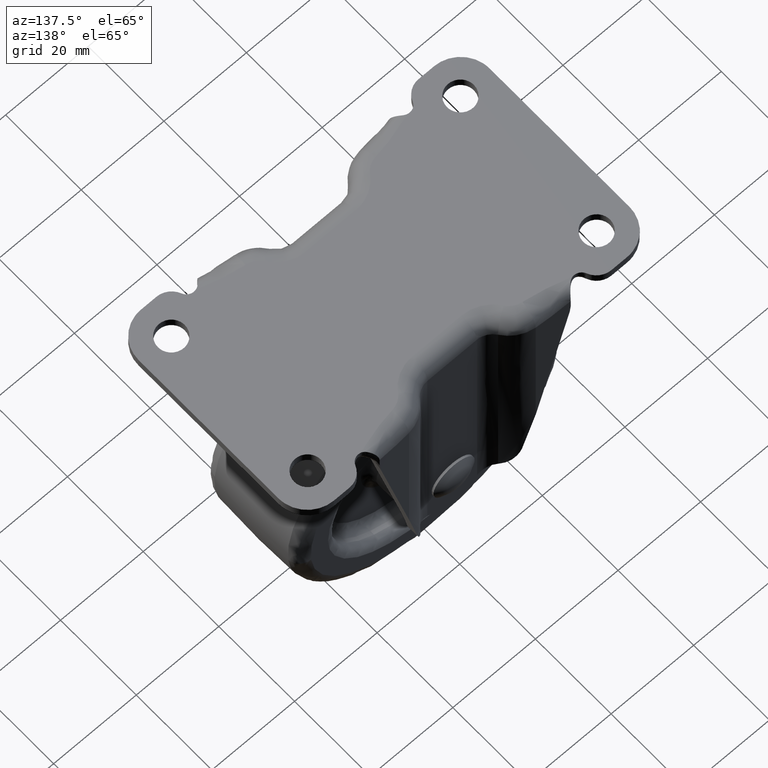
[diagram: clean part render]
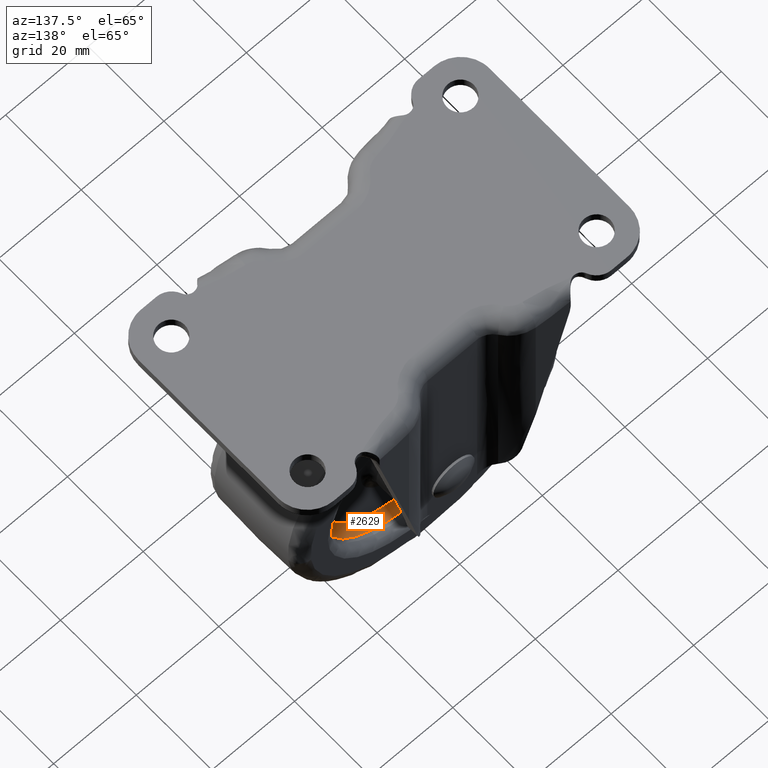
[diagram: same view with one face highlighted and labeled with its STEP entity id]
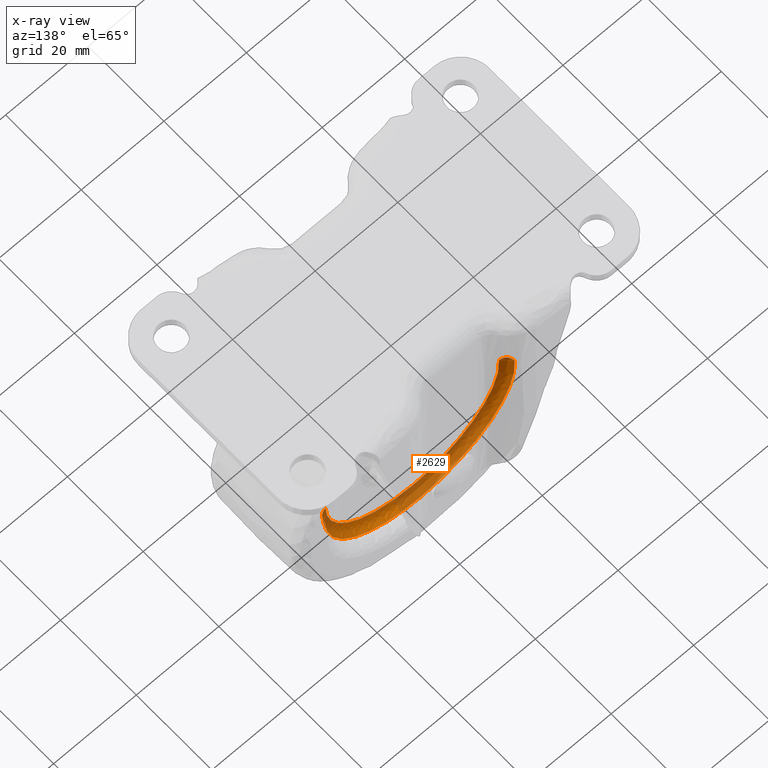
[diagram: x-ray of the same camera — body ghosted, the highlighted face saturated]
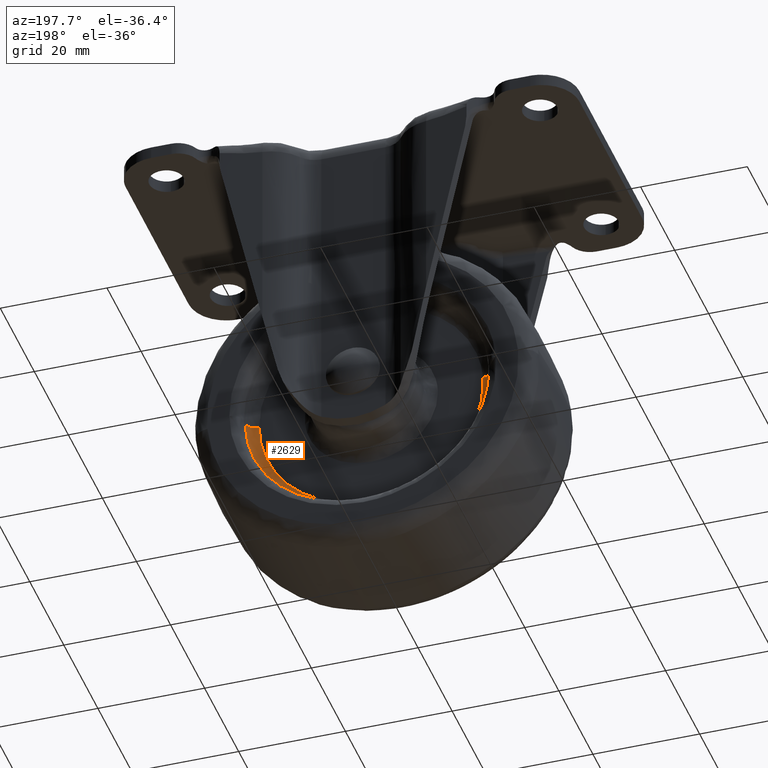
[diagram: same view with one face highlighted and labeled with its STEP entity id]
A machine part, auxiliary view. The second image highlights one B-rep face of the part: STEP entity #2629.
The next image is the same camera in x-ray: the body ghosted, the highlighted face saturated — about 72% of this face is hidden behind the body in this view.
A second angle (auxiliary view) of the same face is appended — the face is thin or edge-on in the first view.
In plain terms, the highlighted face is a freeform B-spline surface patch.
Its self-contained STEP definition (entity closure, byte-faithful):
#1368=CARTESIAN_POINT('',(11.999742555224611,9.499999999681979,-72.121574315226923));
#1369=VERTEX_POINT('',#1368);
#1370=CARTESIAN_POINT('',(22.998184016686370,9.499999997868134,-52.789018917428578));
#1371=VERTEX_POINT('',#1370);
#1372=CARTESIAN_POINT('',(11.999742555224609,9.499999999681979,-72.121574315226923));
#1373=CARTESIAN_POINT('',(22.838532437817172,9.499999999060652,-65.493019128346916));
#1374=CARTESIAN_POINT('',(22.998184016686366,9.499999997868134,-52.789018917428571));
#1382=(BOUNDED_CURVE()B_SPLINE_CURVE(2,(#1372,#1373,#1374),.UNSPECIFIED.,.F.,.U.)B_SPLINE_CURVE_WITH_KNOTS((3,3),(0.089144119900250,0.247784295920023),.UNSPECIFIED.)CURVE()GEOMETRIC_REPRESENTATION_ITEM()RATIONAL_B_SPLINE_CURVE((0.865603196985201,0.812290228465074,0.994854295640089))REPRESENTATION_ITEM(''));
#1383=EDGE_CURVE('',#1369,#1371,#1382,.T.);
#1402=CARTESIAN_POINT('',(-22.944010498322651,9.499999997871102,-50.896135213660429));
#1403=VERTEX_POINT('',#1402);
#1417=CARTESIAN_POINT('',(-17.225983274721330,9.500000000000405,-67.740259191333138));
#1418=VERTEX_POINT('',#1417);
#1419=CARTESIAN_POINT('',(-22.944010498322651,9.499999997871102,-50.896135213660429));
#1420=CARTESIAN_POINT('',(-23.0,9.500000000000000,-51.697090334776846));
#1421=CARTESIAN_POINT('',(-23.0,9.500000000000000,-52.500000000000000));
#1422=CARTESIAN_POINT('',(-23.0,9.500000000000000,-61.213919036031115));
#1423=CARTESIAN_POINT('',(-17.225983274721340,9.500000000000405,-67.740259191333152));
#1431=(BOUNDED_CURVE()B_SPLINE_CURVE(2,(#1419,#1420,#1421,#1422,#1423),.UNSPECIFIED.,.F.,.U.)B_SPLINE_CURVE_WITH_KNOTS((3,2,3),(0.737833686533569,0.750000000000000,0.865779871246717),.UNSPECIFIED.)CURVE()GEOMETRIC_REPRESENTATION_ITEM()RATIONAL_B_SPLINE_CURVE((0.972879876383756,0.985746277150895,1.0,0.864355443346967,0.854350161130784))REPRESENTATION_ITEM(''));
#1432=EDGE_CURVE('',#1403,#1418,#1431,.T.);
#1527=CARTESIAN_POINT('',(0.0,9.500000000000000,-75.500000000000000));
#1528=VERTEX_POINT('',#1527);
#1529=CARTESIAN_POINT('',(0.0,9.500000000000000,-75.500000000000000));
#1530=CARTESIAN_POINT('',(6.475454818462962,9.500000000000000,-75.500000000000000));
#1531=CARTESIAN_POINT('',(11.999742555224612,9.499999999681979,-72.121574315226923));
#1539=(BOUNDED_CURVE()B_SPLINE_CURVE(2,(#1529,#1530,#1531),.UNSPECIFIED.,.F.,.U.)B_SPLINE_CURVE_WITH_KNOTS((3,3),(0.0,0.089144119900250),.UNSPECIFIED.)CURVE()GEOMETRIC_REPRESENTATION_ITEM()RATIONAL_B_SPLINE_CURVE((1.0,0.895561167136494,0.865603196985200))REPRESENTATION_ITEM(''));
#1540=EDGE_CURVE('',#1528,#1369,#1539,.T.);
#1572=CARTESIAN_POINT('',(-17.225983274721340,9.500000000000405,-67.740259191333152));
#1573=CARTESIAN_POINT('',(-10.360746074869374,9.500000000000000,-75.500000000000000));
#1574=CARTESIAN_POINT('',(0.0,9.500000000000000,-75.500000000000000));
#1582=(BOUNDED_CURVE()B_SPLINE_CURVE(2,(#1572,#1573,#1574),.UNSPECIFIED.,.F.,.U.)B_SPLINE_CURVE_WITH_KNOTS((3,3),(0.865779871246717,1.0),.UNSPECIFIED.)CURVE()GEOMETRIC_REPRESENTATION_ITEM()RATIONAL_B_SPLINE_CURVE((0.854350161130784,0.842751337839580,1.0))REPRESENTATION_ITEM(''));
#1583=EDGE_CURVE('',#1418,#1528,#1582,.T.);
#2534=CARTESIAN_POINT('',(-22.939181092293822,9.639074372769990,-50.896474077946017));
#2535=CARTESIAN_POINT('',(-22.985073270976599,9.639074372769985,-51.552982951950312));
#2536=CARTESIAN_POINT('',(-22.993343119147028,9.639074372769988,-52.211041918397783));
#2537=CARTESIAN_POINT('',(-23.282301200749234,9.639074372769986,-75.204385037544810));
#2538=CARTESIAN_POINT('',(-0.288958081602215,9.639074372769988,-75.493343119147028));
#2539=CARTESIAN_POINT('',(22.704385037544810,9.639074372769986,-75.782301200749231));
#2540=CARTESIAN_POINT('',(22.993343119147028,9.639074372769988,-52.788958081602203));
#2541=CARTESIAN_POINT('',(-23.098707814599930,7.344921867656677,-50.885322623434682));
#2542=CARTESIAN_POINT('',(-23.144919142811872,7.344921867656677,-51.546397079288376));
#2543=CARTESIAN_POINT('',(-23.153246502266914,7.344921867656677,-52.209032407445477));
#2544=CARTESIAN_POINT('',(-23.444214094821419,7.344921867656674,-75.362278909712359));
#2545=CARTESIAN_POINT('',(-0.290967592554519,7.344921867656677,-75.653246502266910));
#2546=CARTESIAN_POINT('',(22.862278909712384,7.344921867656674,-75.944214094821433));
#2547=CARTESIAN_POINT('',(23.153246502266914,7.344921867656677,-52.790967592554509));
#2548=CARTESIAN_POINT('',(-20.810140267999163,7.504841499379063,-51.045301193313925));
#2549=CARTESIAN_POINT('',(-20.851773082690773,7.504841499379063,-51.640877892423092));
#2550=CARTESIAN_POINT('',(-20.859275386270365,7.504841499379062,-52.237860816150310));
#2551=CARTESIAN_POINT('',(-21.121414570120056,7.504841499379065,-73.097136202420671));
#2552=CARTESIAN_POINT('',(-0.262139183849685,7.504841499379062,-73.359275386270369));
#2553=CARTESIAN_POINT('',(20.597136202420689,7.504841499379065,-73.621414570120052));
#2554=CARTESIAN_POINT('',(20.859275386270365,7.504841499379062,-52.762139183849683));
#2562=(BOUNDED_SURFACE()B_SPLINE_SURFACE(2,2,((#2534,#2541,#2548),(#2535,#2542,#2549),(#2536,#2543,#2550),(#2537,#2544,#2551),(#2538,#2545,#2552),(#2539,#2546,#2553),(#2540,#2547,#2554)),.UNSPECIFIED.,.F.,.F.,.U.)B_SPLINE_SURFACE_WITH_KNOTS((3,2,2,3),(3,3),(0.0,1.523983604348004,39.623610047683293,77.723236491018582),(0.0,3.644752010702328),.UNSPECIFIED.)GEOMETRIC_REPRESENTATION_ITEM()RATIONAL_B_SPLINE_SURFACE(((0.889999331334139,0.584039414790099,0.889999971556424),(0.899812902704159,0.590479321291327,0.899813549985850),(0.910479827221765,0.597479219081738,0.910480482176724),(0.643806459962066,0.422481607430740,0.643806923085159),(0.910479827221765,0.597479219081738,0.910480482176724),(0.643806459962066,0.422481607430740,0.643806923085159),(0.910479827221765,0.597479219081738,0.910480482176724)))REPRESENTATION_ITEM('')SURFACE());
#2563=CARTESIAN_POINT('',(-20.948879159088708,7.500000000000001,-51.035601715940622));
#2564=VERTEX_POINT('',#2563);
#2565=CARTESIAN_POINT('',(0.0,7.500000000000000,-73.500000000000000));
#2566=VERTEX_POINT('',#2565);
#2567=CARTESIAN_POINT('',(-20.948879159088715,7.500000000000001,-51.035601715940615));
#2568=CARTESIAN_POINT('',(-21.0,7.500000000000000,-51.766908566246379));
#2569=CARTESIAN_POINT('',(-21.0,7.500000000000000,-52.500000000000000));
#2570=CARTESIAN_POINT('',(-21.000000000000007,7.500000000000000,-73.500000000000014));
#2571=CARTESIAN_POINT('',(0.0,7.500000000000000,-73.500000000000000));
#2579=(BOUNDED_CURVE()B_SPLINE_CURVE(2,(#2567,#2568,#2569,#2570,#2571),.UNSPECIFIED.,.F.,.U.)B_SPLINE_CURVE_WITH_KNOTS((3,2,3),(0.737833686528842,0.750000000000000,1.0),.UNSPECIFIED.)CURVE()GEOMETRIC_REPRESENTATION_ITEM()RATIONAL_B_SPLINE_CURVE((0.972879876373756,0.985746277145356,1.0,0.707106781186547,1.0))REPRESENTATION_ITEM(''));
#2580=EDGE_CURVE('',#2564,#2566,#2579,.T.);
#2581=ORIENTED_EDGE('',*,*,#2580,.T.);
#2582=CARTESIAN_POINT('',(20.998341940377170,7.500000000000000,-52.763886838362978));
#2583=VERTEX_POINT('',#2582);
#2584=CARTESIAN_POINT('',(0.0,7.500000000000000,-73.500000000000000));
#2585=CARTESIAN_POINT('',(20.737750526749025,7.499999999999999,-73.499999999999986));
#2586=CARTESIAN_POINT('',(20.998341940377177,7.500000000000000,-52.763886838362971));
#2594=(BOUNDED_CURVE()B_SPLINE_CURVE(2,(#2584,#2585,#2586),.UNSPECIFIED.,.F.,.U.)B_SPLINE_CURVE_WITH_KNOTS((3,3),(0.0,0.247784295910666),.UNSPECIFIED.)CURVE()GEOMETRIC_REPRESENTATION_ITEM()RATIONAL_B_SPLINE_CURVE((1.0,0.709702639997201,0.994854295618550))REPRESENTATION_ITEM(''));
#2595=EDGE_CURVE('',#2566,#2583,#2594,.T.);
#2596=ORIENTED_EDGE('',*,*,#2595,.T.);
#2597=CARTESIAN_POINT('',(22.998184016686370,9.499999997868134,-52.789018917428585));
#2598=CARTESIAN_POINT('',(22.998184012424360,7.500000024212589,-52.789018917263562));
#2599=CARTESIAN_POINT('',(20.998341940377173,7.500000000000001,-52.763886838362978));
#2607=(BOUNDED_CURVE()B_SPLINE_CURVE(2,(#2597,#2598,#2599),.UNSPECIFIED.,.F.,.U.)B_SPLINE_CURVE_WITH_KNOTS((3,3),(-1.725134641095594,-0.274865369133132),.UNSPECIFIED.)CURVE()GEOMETRIC_REPRESENTATION_ITEM()RATIONAL_B_SPLINE_CURVE((0.883342148873025,0.624617226732397,0.883342145223460))REPRESENTATION_ITEM(''));
#2608=EDGE_CURVE('',#1371,#2583,#2607,.T.);
#2609=ORIENTED_EDGE('',*,*,#2608,.F.);
#2610=ORIENTED_EDGE('',*,*,#1383,.F.);
#2611=ORIENTED_EDGE('',*,*,#1540,.F.);
#2612=ORIENTED_EDGE('',*,*,#1583,.F.);
#2613=ORIENTED_EDGE('',*,*,#1432,.F.);
#2614=CARTESIAN_POINT('',(-22.944010498322651,9.499999997871100,-50.896135213660436));
#2615=CARTESIAN_POINT('',(-22.944010494082516,7.500000016974172,-50.896135214061751));
#2616=CARTESIAN_POINT('',(-20.948879159088715,7.500000000000001,-51.035601715940615));
#2624=(BOUNDED_CURVE()B_SPLINE_CURVE(2,(#2614,#2615,#2616),.UNSPECIFIED.,.F.,.U.)B_SPLINE_CURVE_WITH_KNOTS((3,3),(-1.725134641098639,-0.274865365421651),.UNSPECIFIED.)CURVE()GEOMETRIC_REPRESENTATION_ITEM()RATIONAL_B_SPLINE_CURVE((0.863472074611277,0.610566961759726,0.863472072337196))REPRESENTATION_ITEM(''));
#2625=EDGE_CURVE('',#1403,#2564,#2624,.T.);
#2626=ORIENTED_EDGE('',*,*,#2625,.T.);
#2627=EDGE_LOOP('',(#2581,#2596,#2609,#2610,#2611,#2612,#2613,#2626));
#2628=FACE_OUTER_BOUND('',#2627,.T.);
#2629=ADVANCED_FACE('',(#2628),#2562,.F.);